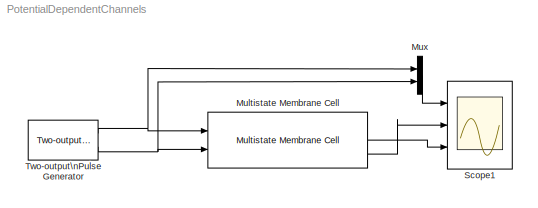
MODEL PotentialDependentChannels
KIND model
BLOCK [Reference] Multistate Membrane Cell  REF=NeuroModelerLibrary/Multistate Cells/Multistate Membrane Cell
  AllowZeroVariantControls = off
  GeneratePreprocessorConditionals = off
  Ports = [2, 3]
  PropagateVariantConditions = off
  SID = 1
  ShowPortLabels = FromPortIcon
  SourceBlock = NeuroModelerLibrary/Multistate Cells/Multistate Membrane Cell
  SourceType = SubSystem
  SystemSampleTime = -1
BLOCK [Mux] Mux
  DisplayOption = bar
  Inputs = 2
  Ports = [2, 1]
  SID = 2
BLOCK [Scope] Scope1
  Floating = off
  NumInputPorts = 3
  Ports = [3]
  SID = 3
  ScopeSpecificationString = Simulink.scopes.TimeScopeBlockCfg('CurrentConfiguration', extmgr.ConfigurationSet(extmgr.Configuration('Core','General UI',true,'FigureColor',[1 1 1]),extmgr.Configuration('Core','Source UI',true),extmgr.Configuration('Sources','WiredSimulink',true,'DataLoggingSaveFormat','StructureWithTime','DataLoggingMaxPoints','5000000','DataLoggingLimitDataPoints',true,'DataLoggingDecimation','1','DataLogging...<+3538ch>
BLOCK [Reference] Two-output\nPulse Generator  REF=NeuroModelerLibrary/Support/Two-output\nPulse Generator
  A = 1
  OOff1 = 0.2
  OOff2 = 0.3
  OOn1 = 0.15
  OOn2 = 0.25
  P1 = 200
  P2 = 200
  PW = 1
  Ports = [0, 2]
  SID = 4
  ST = 0.001
  SourceBlock = NeuroModelerLibrary/Support/Two-output\nPulse Generator
LINE Multistate Membrane Cell:2 -> Scope1:3
LINE Multistate Membrane Cell:3 -> Scope1:2
LINE Mux:1 -> Scope1:1
NET Two-output\nPulse Generator:1 -> Multistate Membrane Cell:1, Mux:1
NET Two-output\nPulse Generator:2 -> Multistate Membrane Cell:2, Mux:2
note: NET lines group one-source signal fan-out (src -> all destinations, sorted); 1:1 wires keep LINE
